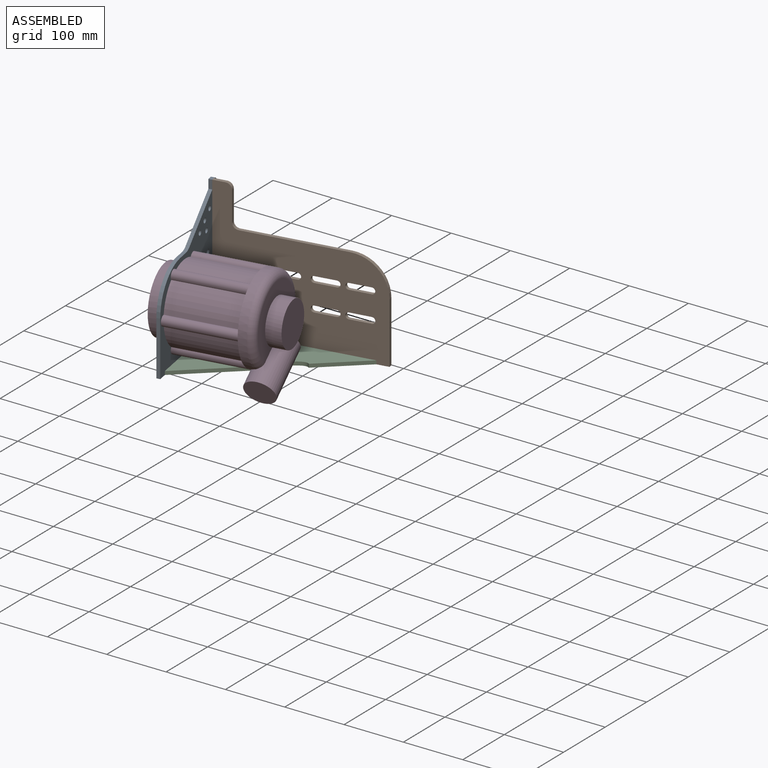
[diagram: assembled view]
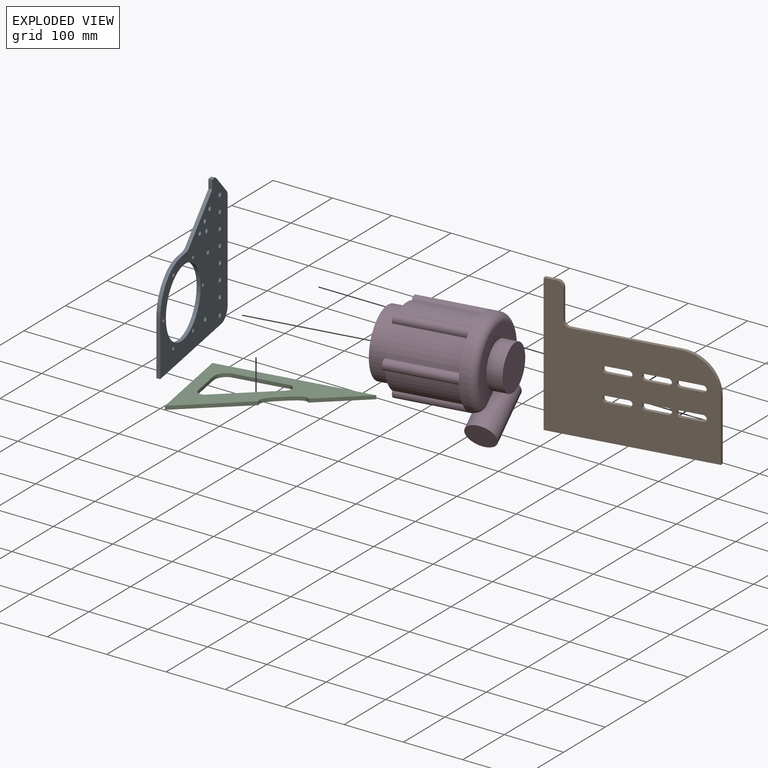
[diagram: exploded view]
GUIDED TOUR — MATED ASSEMBLY (Onshape document b6dd15bceb732d4331d81764, AutoMate assembly b6dd15bceb732d4331d81764_ab1a98565d9f3b49eaa1578f_37b8a9156326d89f8cf06a58_default)

This assembly has 4 components, labeled P0..P3 below (a component is one placed occurrence of a part; the same part can appear more than once), held together by 3 mates. A mate is a constraint between two components; its type names the relative motion it leaves free:
  FASTENED — locks the two components together rigidly (no relative motion).
Axis/direction vectors are unit vectors and 'through' points are millimeter coordinates, both in the assembly's world frame.

MATES
  1. FASTENED "Fastened 3": P3 <-> P0, direction (-0.985, -0.174, 0.000) through (-94.54, 47.59, 72.27) mm
  2. FASTENED "Fastened 1": P1 <-> P0, direction (-0.985, -0.174, 0.000) through (-111.03, 141.15, 219.27) mm
  3. FASTENED "Fastened 2": P2 <-> P1, direction (-0.174, 0.985, 0.000) through (-111.03, 141.15, -12.73) mm

ASSEMBLY ORDER
  1. P0 — the base component [order heuristic]
  2. P3 — core [order heuristic]
  3. P1 [order verified]
  4. P2 [order verified]
Order-tag legend:
  [order verified] — this step's position reverses a verified removal order: the component was checked to insert without passing through the ones already placed.
  [order heuristic] — the first 2 components form the assembly's core: parts whose collision-free extraction could not be verified, listed in mate-graph order.

Of the 4 components, 3 carry the full construction recipe — the FeatureScript program that regenerates the part's solid from scratch; the rest are supplied as boundary geometry only.
Each toured component is shown spotlighted twice — in the assembled view, then in the exploded view, where a leader line traces a displaced component back to its assembled socket (saturated green if recipe-attached, orange if geometry-only; every other component desaturated gray) — followed by its recipe or geometry summary and the mates that hold it.
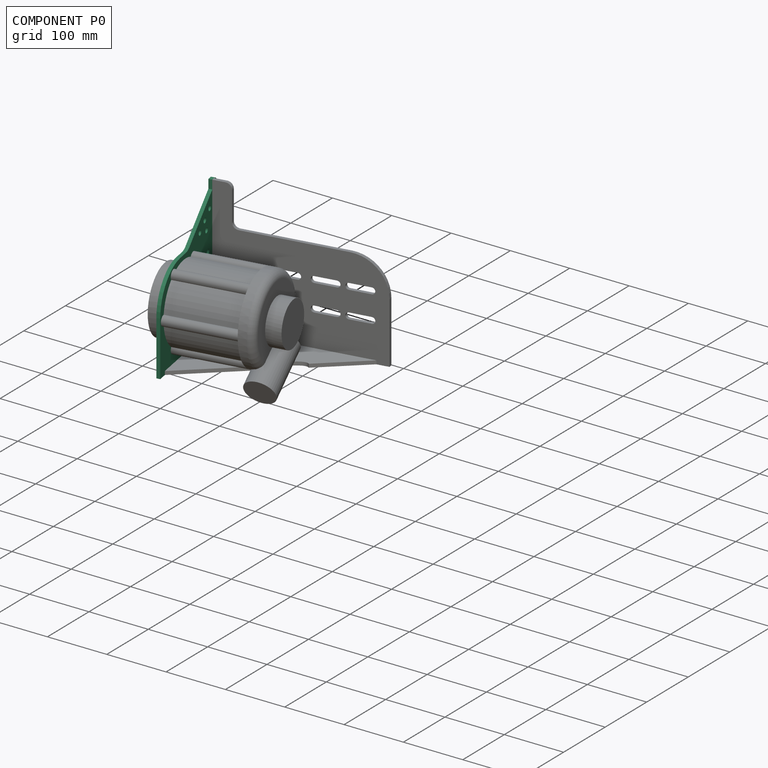
[diagram: component P0 — assembled]
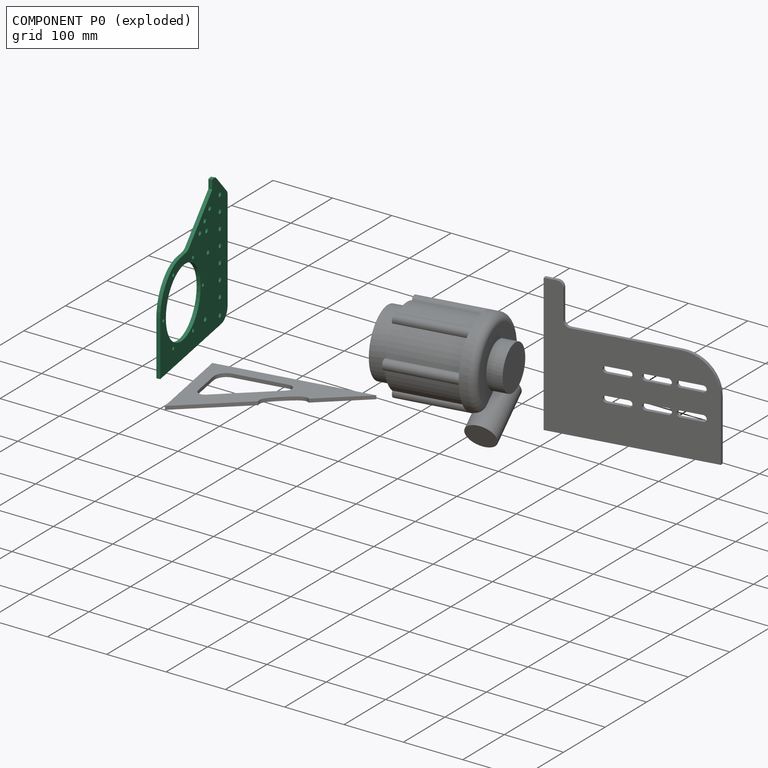
[diagram: component P0 — exploded]
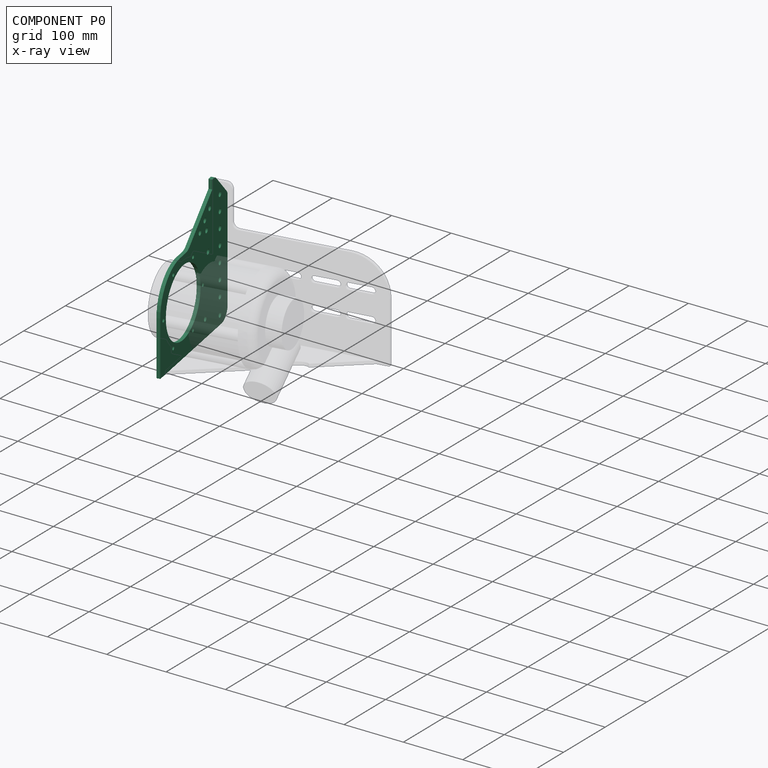
[diagram: component P0 — x-ray view]
COMPONENT P0 — recipe-attached (CADFS 00251067, mesh-verified: the recipe's output STEP matches this component's geometry to below the mesh-comparison resolution (tessellation chordal tolerance ~0.48 mm)).
Held by: FASTENED mate "Fastened 3" to P3; FASTENED mate "Fastened 1" to P1.
Construction recipe (FeatureScript — the CAD program that rebuilds this solid; sketch coordinates are in the units given by the * unit suffixes, e.g. mm):

FeatureScript 1511;
import(path : "onshape/std/geometry.fs", version : "1511.0");
import(path : "onshape/std/common.fs", version : "1511.0");
const mm = millimeter;
const VERTEX = EntityType.VERTEX;
const EDGE = EntityType.EDGE;
const FACE = EntityType.FACE;
const BODY = EntityType.BODY;
function v(x, y){return vector(x, y);}
function OD(order){return orderDisambiguation(order);}
function OSD(set){return originalSetDisambiguation(set);}
function TD(topology){return topologyDisambiguation(topology);}
function TDD(query){return trueDependencyDisambiguation(query);}
function sQuery(a, b, c) {return sketchEntityQuery(a, b, c);}

annotation { "Feature Type Name" : "Feature", "Feature Type Description" : "" }
export const myFeature = defineFeature(function(context is Context, id is Id, definition is map)
    precondition{}
    {
        {
            var Q0;
            Q0=qCreatedBy(makeId("Right.planeOp"),FACE);
            var sketch = newSketch(context, id + "F0", { "sketchPlane" : qUnion([Q0])});
            skLineSegment(sketch, "E0.bottom", {"start": v(-20, 0) * mm, "end": v(-220, 0) * mm});
            skLineSegment(sketch, "E0.left", {"start": v(0, 20) * mm, "end": v(0, 187.86) * mm});
            skLineSegment(sketch, "E0.right", {"start": v(-220, 0) * mm, "end": v(-220, 92) * mm});
            skCircle(sketch, "E1", {"center": v(-145, 85) * mm, "radius": 56.75 * mm});
            skCircle(sketch, "E2", {"center": v(-145, 85) * mm, "radius": 64.5 * mm, "construction": true});
            skCircle(sketch, "E3", {"center": v(-80.5, 85) * mm, "radius": 3.1 * mm});
            skLineSegment(sketch, "E4", {"start": v(25.99, 85) * mm, "end": v(-259.94, 85) * mm, "construction": true});
            skCircle(sketch, "E5.1.0", {"center": v(-112.75, 140.86) * mm, "radius": 3.1 * mm});
            skCircle(sketch, "E5.2.0", {"center": v(-177.25, 140.86) * mm, "radius": 3.1 * mm});
            skCircle(sketch, "E5.3.0", {"center": v(-209.5, 85) * mm, "radius": 3.1 * mm});
            skCircle(sketch, "E5.4.0", {"center": v(-177.25, 29.14) * mm, "radius": 3.1 * mm});
            skCircle(sketch, "E5.5.0", {"center": v(-112.75, 29.14) * mm, "radius": 3.1 * mm});
            skCircle(sketch, "E6", {"center": v(-145, 85) * mm, "radius": 55 * mm, "construction": true});
            skCircle(sketch, "E7", {"center": v(-145, 85) * mm, "radius": 42.5 * mm, "construction": true});
            skLineSegment(sketch, "E8", {"start": v(-25, -2.5) * mm, "end": v(-25, 245.05) * mm, "construction": true});
            skLineSegment(sketch, "E9.top", {"start": v(-44.14, 232) * mm, "end": v(-50, 232) * mm});
            skLineSegment(sketch, "E9.right", {"start": v(-50, 157) * mm, "end": v(-50, 232) * mm});
            skCircle(sketch, "E10", {"center": v(-25, 199.42) * mm, "radius": 26 * mm, "construction": true});
            skCircle(sketch, "E11", {"center": v(-25, 199.42) * mm, "radius": 4.1 * mm});
            skLineSegment(sketch, "E12", {"start": v(-136.67, 157) * mm, "end": v(-155, 157) * mm});
            skLineSegment(sketch, "E13.bottom", {"start": v(-50, 232) * mm, "end": v(-44, 232) * mm, "construction": true});
            skLineSegment(sketch, "E13.top", {"start": v(-50, 0) * mm, "end": v(-44, 0) * mm, "construction": true});
            skLineSegment(sketch, "E13.left", {"start": v(-50, 232) * mm, "end": v(-50, 0) * mm, "construction": true});
            skLineSegment(sketch, "E13.right", {"start": v(-44, 232) * mm, "end": v(-44, 0) * mm, "construction": true});
            skCircle(sketch, "E14.0.1.0", {"center": v(-25, 173.42) * mm, "radius": 4.1 * mm});
            skCircle(sketch, "E14.0.2.0", {"center": v(-25, 147.42) * mm, "radius": 4.1 * mm});
            skCircle(sketch, "E14.0.3.0", {"center": v(-25, 121.42) * mm, "radius": 4.1 * mm});
            skCircle(sketch, "E14.0.4.0", {"center": v(-25, 95.42) * mm, "radius": 4.1 * mm});
            skCircle(sketch, "E14.0.5.0", {"center": v(-25, 69.42) * mm, "radius": 4.1 * mm});
            skCircle(sketch, "E14.0.6.0", {"center": v(-25, 43.42) * mm, "radius": 4.1 * mm});
            skCircle(sketch, "E14.0.7.0", {"center": v(-25, 15.48) * mm, "radius": 4.1 * mm});
            skLineSegment(sketch, "E14.direction2", {"start": v(-25, 199.42) * mm, "end": v(-25, 173.42) * mm, "construction": true});
            skPoint(sketch, "E15.visualSharp", {"position": v(0, 232) * mm});
            skPoint(sketch, "E16.visualSharp", {"position": v(0, 0) * mm});
            skArc(sketch, "E16.filletArc", {"start": v(-20, 0) * mm, "mid": v(-5.86, 5.86) * mm, "end": v(0, 20) * mm});
            skPoint(sketch, "E17.visualSharp", {"position": v(-220, 157) * mm});
            skArc(sketch, "E17.filletArc", {"start": v(-155, 157) * mm, "mid": v(-200.96, 137.96) * mm, "end": v(-220, 92) * mm});
            skPoint(sketch, "E18.visualSharp", {"position": v(-220, 0) * mm});
            skCircle(sketch, "E19", {"center": v(-72.99, 29.66) * mm, "radius": 4.1 * mm});
            skCircle(sketch, "E20", {"center": v(-63.87, 127.94) * mm, "radius": 4.1 * mm});
            skCircle(sketch, "E21", {"center": v(-63.87, 127.94) * mm, "radius": 20 * mm, "construction": true});
            skCircle(sketch, "E22", {"center": v(-72.99, 29.66) * mm, "radius": 26 * mm, "construction": true});
            skCircle(sketch, "E23", {"center": v(-25, 121.42) * mm, "radius": 26 * mm, "construction": true});
            skCircle(sketch, "E24", {"center": v(-25, 43.42) * mm, "radius": 26 * mm, "construction": true});
            skLineSegment(sketch, "E25", {"start": v(-2.93, 194.93) * mm, "end": v(-37.07, 229.07) * mm});
            skPoint(sketch, "E26.visualSharp", {"position": v(0, 192) * mm});
            skArc(sketch, "E26.filletArc", {"start": v(0, 187.86) * mm, "mid": v(-0.76, 191.68) * mm, "end": v(-2.93, 194.93) * mm});
            skPoint(sketch, "E27.visualSharp", {"position": v(-40, 232) * mm});
            skArc(sketch, "E27.filletArc", {"start": v(-37.07, 229.07) * mm, "mid": v(-40.32, 231.24) * mm, "end": v(-44.14, 232) * mm});
            skLineSegment(sketch, "E28", {"start": v(-50, 217) * mm, "end": v(-124.67, 161) * mm});
            skCircle(sketch, "E29", {"center": v(-58.3, 192.02) * mm, "radius": 26 * mm, "construction": true});
            skCircle(sketch, "E30", {"center": v(-58.3, 192.02) * mm, "radius": 4.1 * mm});
            skCircle(sketch, "E31", {"center": v(-74.3, 180.02) * mm, "radius": 4.1 * mm});
            skCircle(sketch, "E32", {"center": v(-90.3, 168.02) * mm, "radius": 4.1 * mm});
            skLineSegment(sketch, "E33", {"start": v(-107.79, 154.9) * mm, "end": v(-46.32, 201.01) * mm, "construction": true});
            skPoint(sketch, "E34.visualSharp", {"position": v(-130, 157) * mm});
            skArc(sketch, "E34.filletArc", {"start": v(-136.67, 157) * mm, "mid": v(-130.34, 158.03) * mm, "end": v(-124.67, 161) * mm});
            skCircle(sketch, "E35", {"center": v(-68.75, 162.53) * mm, "radius": 4.1 * mm});
            skSolve(sketch);
        }
        {
            var Q0;
            Q0 = qSketchRegion(id + "F0", true);
            extrude(context, id + "F1", {"entities" : qUnion([Q0]), "depth" : 6 * mm});
        }
    });
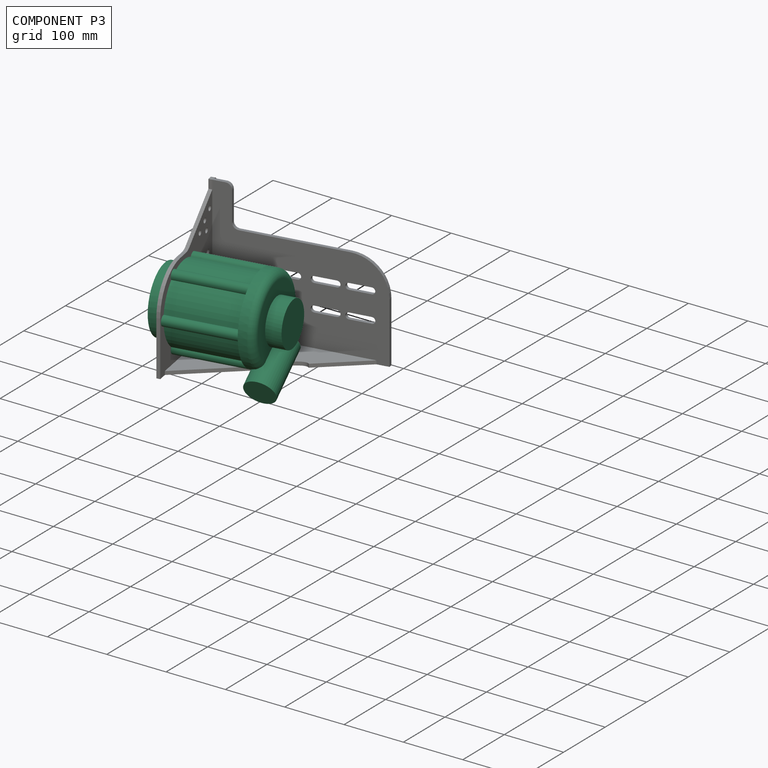
[diagram: component P3 — assembled]
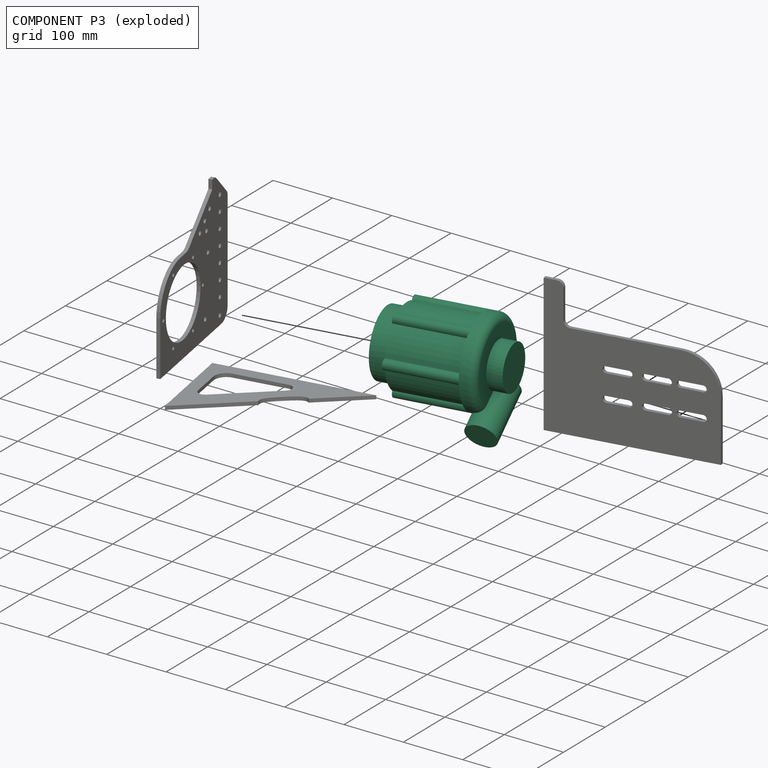
[diagram: component P3 — exploded]
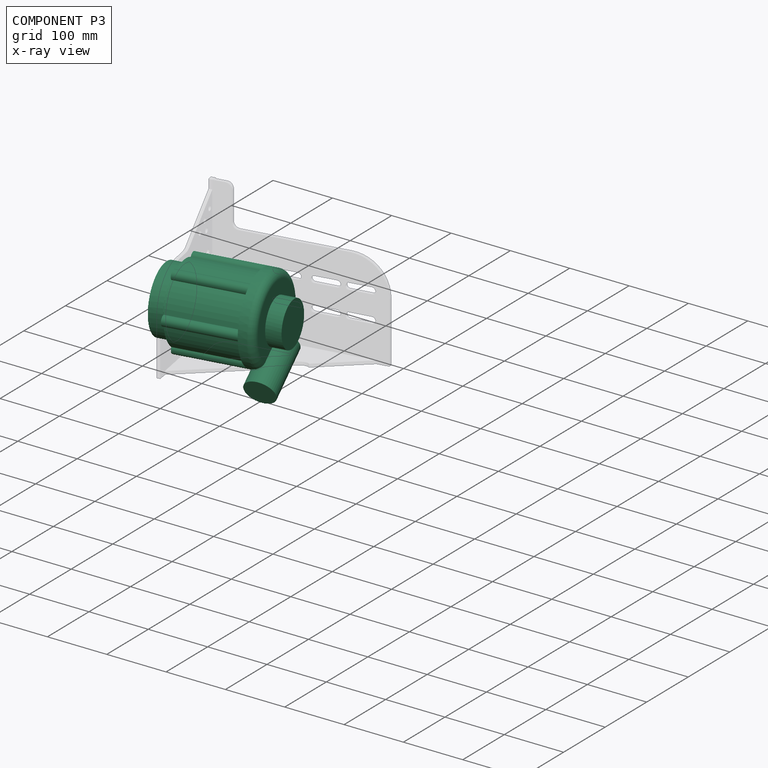
[diagram: component P3 — x-ray view]
COMPONENT P3 — recipe-attached (CADFS 00251066, mesh-verified: the recipe's output STEP matches this component's geometry to below the mesh-comparison resolution (tessellation chordal tolerance ~0.456 mm)).
Held by: FASTENED mate "Fastened 3" to P0.
Construction recipe (FeatureScript — the CAD program that rebuilds this solid; sketch coordinates are in the units given by the * unit suffixes, e.g. mm):

FeatureScript 1511;
import(path : "onshape/std/geometry.fs", version : "1511.0");
import(path : "onshape/std/common.fs", version : "1511.0");
const mm = millimeter;
const VERTEX = EntityType.VERTEX;
const EDGE = EntityType.EDGE;
const FACE = EntityType.FACE;
const BODY = EntityType.BODY;
function v(x, y){return vector(x, y);}
function OD(order){return orderDisambiguation(order);}
function OSD(set){return originalSetDisambiguation(set);}
function TD(topology){return topologyDisambiguation(topology);}
function TDD(query){return trueDependencyDisambiguation(query);}
function sQuery(a, b, c) {return sketchEntityQuery(a, b, c);}

annotation { "Feature Type Name" : "Feature", "Feature Type Description" : "" }
export const myFeature = defineFeature(function(context is Context, id is Id, definition is map)
    precondition{}
    {
        {
            var Q0;
            Q0=qCreatedBy(makeId("Right.planeOp"),FACE);
            var sketch = newSketch(context, id + "F0", { "sketchPlane" : qUnion([Q0])});
            skCircle(sketch, "E0", {"center": v(0, 0) * mm, "radius": 56.5 * mm});
            skSolve(sketch);
        }
        {
            var Q0;
            Q0 = qSketchRegion(id + "F0", true);
            extrude(context, id + "F1", {"entities" : qUnion([Q0]), "oppositeDirection" : true, "depth" : 5 * mm});
        }
        {
            var Q0;
            Q0=makeQuery(id+"F1.opExtrude","CAP_FACE",FACE,{"disambiguationData":[OSD([sQuery(id+"F0.wireOp",EDGE,"E0")])],"isStart":true});
            var sketch = newSketch(context, id + "F2", { "sketchPlane" : qUnion([Q0])});
            skCircle(sketch, "E1", {"center": v(0, 0) * mm, "radius": 55 * mm});
            skSolve(sketch);
        }
        {
            var Q0;
            Q0 = qSketchRegion(id + "F2", true);
            extrude(context, id + "F3", {"entities" : qUnion([Q0]), "operationType" : NewBodyOperationType.ADD, "oppositeDirection" : true, "depth" : 28.5 * mm});
        }
        {
            var Q0;
            Q0=qCreatedBy(makeId("Right.planeOp"),FACE);
            var sketch = newSketch(context, id + "F4", { "sketchPlane" : qUnion([Q0])});
            skArc(sketch, "E2", {"start": v(24.62, 59.61) * mm, "mid": v(0, 64.5) * mm, "end": v(-24.62, 59.61) * mm});
            skArc(sketch, "E3", {"start": v(-63.94, 8.48) * mm, "mid": v(-73, 0) * mm, "end": v(-63.94, -8.48) * mm});
            skArc(sketch, "E4.1.1", {"start": v(-39.32, -51.13) * mm, "mid": v(-36.5, -63.22) * mm, "end": v(-24.62, -59.61) * mm});
            skArc(sketch, "E4.2.1", {"start": v(24.62, -59.61) * mm, "mid": v(36.5, -63.22) * mm, "end": v(39.32, -51.13) * mm});
            skArc(sketch, "E4.3.1", {"start": v(63.94, -8.48) * mm, "mid": v(73, 0) * mm, "end": v(63.94, 8.48) * mm});
            skArc(sketch, "E4.4.1", {"start": v(39.32, 51.13) * mm, "mid": v(36.5, 63.22) * mm, "end": v(24.62, 59.61) * mm});
            skArc(sketch, "E4.5.1", {"start": v(-24.62, 59.61) * mm, "mid": v(-36.5, 63.22) * mm, "end": v(-39.32, 51.13) * mm});
            skArc(sketch, "E5.trimOffspring", {"start": v(-39.32, 51.13) * mm, "mid": v(-55.86, 32.25) * mm, "end": v(-63.94, 8.48) * mm});
            skArc(sketch, "E6.trimOffspring", {"start": v(-63.94, -8.48) * mm, "mid": v(-55.86, -32.25) * mm, "end": v(-39.32, -51.13) * mm});
            skArc(sketch, "E7.trimOffspring", {"start": v(-24.62, -59.61) * mm, "mid": v(0, -64.5) * mm, "end": v(24.62, -59.61) * mm});
            skArc(sketch, "E8.trimOffspring", {"start": v(39.32, -51.13) * mm, "mid": v(55.86, -32.25) * mm, "end": v(63.94, -8.48) * mm});
            skArc(sketch, "E9.trimOffspring", {"start": v(63.94, 8.48) * mm, "mid": v(55.86, 32.25) * mm, "end": v(39.32, 51.13) * mm});
            skSolve(sketch);
        }
        {
            var Q0;
            Q0 = qSketchRegion(id + "F4", true);
            extrude(context, id + "F5", {"entities" : qUnion([Q0]), "operationType" : NewBodyOperationType.ADD, "depth" : 117 * mm});
        }
        {
            var Q0;
            Q0=qCreatedBy(makeId("Front.planeOp"),FACE);
            var sketch = newSketch(context, id + "F6", { "sketchPlane" : qUnion([Q0])});
            skArc(sketch, "E10", {"start": v(142, 60.5) * mm, "mid": v(138.34, 69.34) * mm, "end": v(129.5, 73) * mm});
            skLineSegment(sketch, "E11", {"start": v(-35.74, 0) * mm, "end": v(197.64, 0) * mm, "construction": true});
            skLineSegment(sketch, "E12", {"start": v(129.5, 73) * mm, "end": v(117, 73) * mm});
            skLineSegment(sketch, "E13", {"start": v(117, 73) * mm, "end": v(117, 0) * mm});
            skLineSegment(sketch, "E14", {"start": v(117, 0) * mm, "end": v(167, 0) * mm});
            skLineSegment(sketch, "E15", {"start": v(167, 0) * mm, "end": v(167, 37) * mm});
            skLineSegment(sketch, "E16", {"start": v(142, 60.5) * mm, "end": v(142, 37) * mm});
            skLineSegment(sketch, "E17", {"start": v(142, 37) * mm, "end": v(167, 37) * mm});
            skPoint(sketch, "E17.endSnap0", {"position": v(167, 18.5) * mm});
            skSolve(sketch);
        }
        {
            var Q0;
            Q0 = qSketchRegion(id + "F6", true);
            var Q1;
            Q1=sQuery(id+"F6.wireOp",EDGE,"E11");
            revolve(context, id + "F7", {"operationType" : NewBodyOperationType.ADD, "entities" : qUnion([Q0]), "axis" : qUnion([Q1]), "revolveType" : RevolveType.FULL});
        }
        {
            var Q0;
            Q0=sQuery(id+"F6.wireOp",EDGE,"E14");
            var Q1;
            Q1=qCreatedBy(makeId("Front.planeOp"),FACE);
            cPlane(context, id + "F8", {"entities" : qUnion([Q0, Q1]), "cplaneType" : CPlaneType.LINE_ANGLE, "offset" : 25 * mm, "angle" : 30 * degree, "width" : 150 * mm, "height" : 150 * mm});
        }
        {
            var Q0;
            Q0=qCreatedBy(id+"F8.planeOp",FACE);
            var sketch = newSketch(context, id + "F9", { "sketchPlane" : qUnion([Q0])});
            skCircle(sketch, "E18", {"center": v(-142, -48) * mm, "radius": 25 * mm});
            skLineSegment(sketch, "E19", {"start": v(-189.52, -73) * mm, "end": v(-73.54, -73) * mm, "construction": true});
            skSolve(sketch);
        }
        {
            var Q0;
            Q0 = qSketchRegion(id + "F9", true);
            extrude(context, id + "F10", {"entities" : qUnion([Q0]), "operationType" : NewBodyOperationType.ADD, "oppositeDirection" : true, "depth" : 90 * mm});
        }
    });
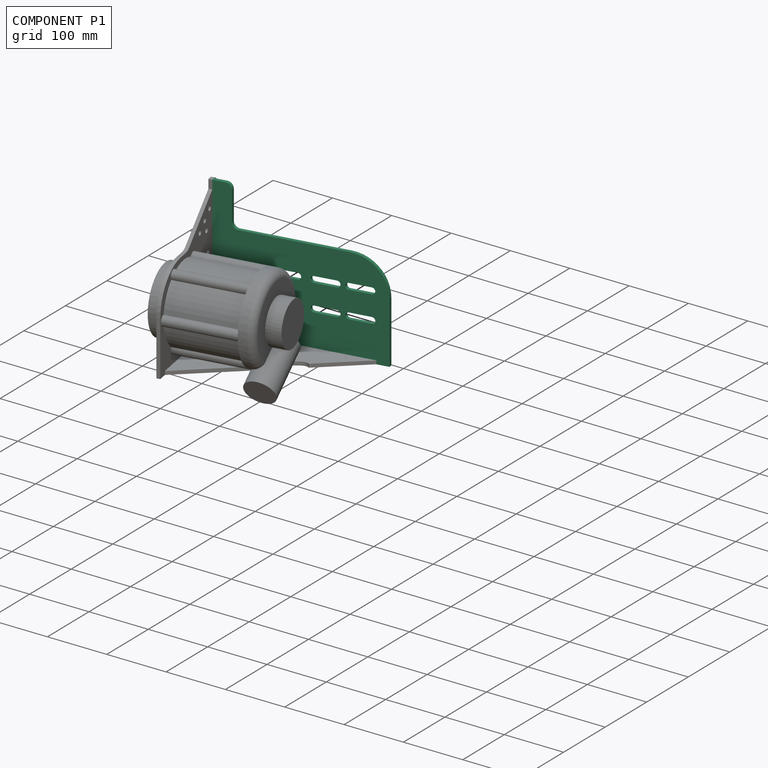
[diagram: component P1 — assembled]
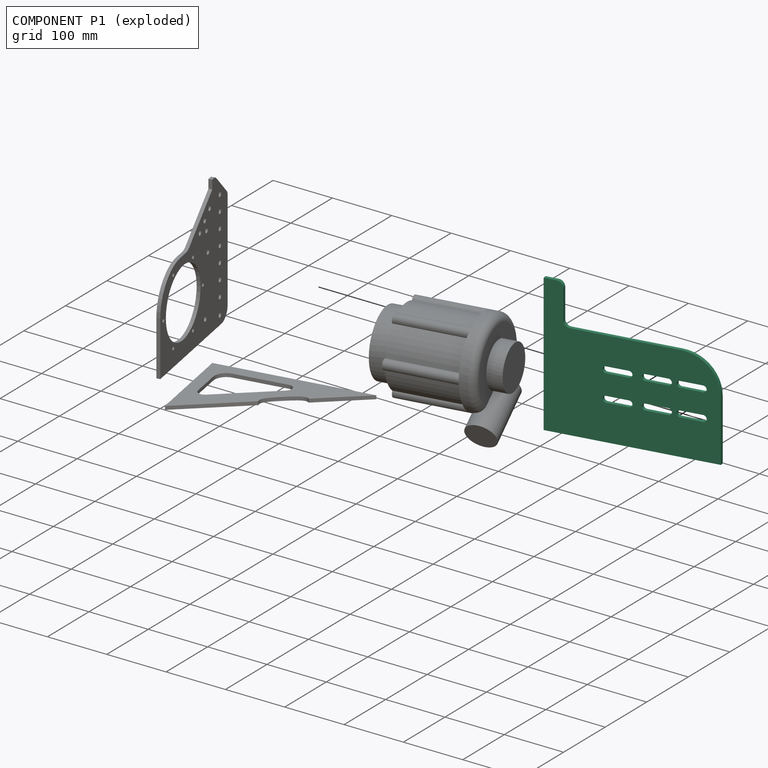
[diagram: component P1 — exploded]
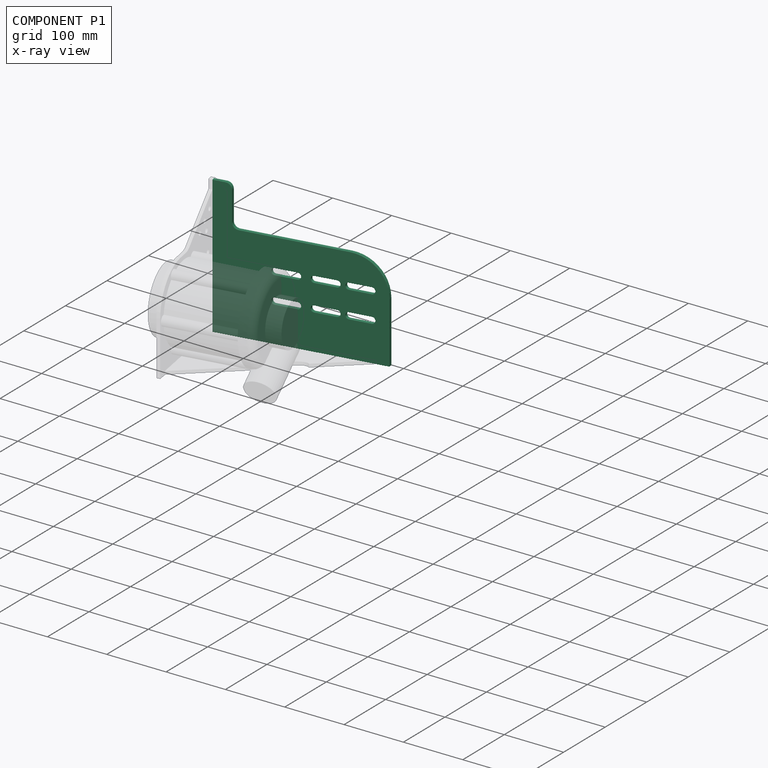
[diagram: component P1 — x-ray view]
COMPONENT P1 — recipe-attached (CADFS 00251064, mesh-verified: the recipe's output STEP matches this component's geometry to below the mesh-comparison resolution (tessellation chordal tolerance ~0.534 mm)).
Held by: FASTENED mate "Fastened 1" to P0; FASTENED mate "Fastened 2" to P2.
Construction recipe (FeatureScript — the CAD program that rebuilds this solid; sketch coordinates are in the units given by the * unit suffixes, e.g. mm):

FeatureScript 1511;
import(path : "onshape/std/geometry.fs", version : "1511.0");
import(path : "onshape/std/common.fs", version : "1511.0");
const mm = millimeter;
const VERTEX = EntityType.VERTEX;
const EDGE = EntityType.EDGE;
const FACE = EntityType.FACE;
const BODY = EntityType.BODY;
function v(x, y){return vector(x, y);}
function OD(order){return orderDisambiguation(order);}
function OSD(set){return originalSetDisambiguation(set);}
function TD(topology){return topologyDisambiguation(topology);}
function TDD(query){return trueDependencyDisambiguation(query);}
function sQuery(a, b, c) {return sketchEntityQuery(a, b, c);}

annotation { "Feature Type Name" : "Feature", "Feature Type Description" : "" }
export const myFeature = defineFeature(function(context is Context, id is Id, definition is map)
    precondition{}
    {
        {
            var Q0;
            Q0=qCreatedBy(makeId("Front.planeOp"),FACE);
            var sketch = newSketch(context, id + "F0", { "sketchPlane" : qUnion([Q0])});
            skLineSegment(sketch, "E0.bottom", {"start": v(0, 0) * mm, "end": v(270, 0) * mm});
            skLineSegment(sketch, "E0.top", {"start": v(40, 163) * mm, "end": v(210, 163) * mm});
            skLineSegment(sketch, "E0.left", {"start": v(0, 0) * mm, "end": v(0, 163) * mm});
            skLineSegment(sketch, "E0.right", {"start": v(270, 0) * mm, "end": v(270, 103) * mm});
            skLineSegment(sketch, "E1.bottom", {"start": v(95, 115.75) * mm, "end": v(130, 115.75) * mm});
            skLineSegment(sketch, "E1.top", {"start": v(95, 105.25) * mm, "end": v(130, 105.25) * mm});
            skArc(sketch, "E2", {"start": v(95, 115.75) * mm, "mid": v(89.75, 110.5) * mm, "end": v(95, 105.25) * mm});
            skArc(sketch, "E3", {"start": v(130, 105.25) * mm, "mid": v(135.25, 110.5) * mm, "end": v(130, 115.75) * mm});
            skPoint(sketch, "E4.startSnap0", {"position": v(89.75, 110.5) * mm});
            skPoint(sketch, "E4.endSnap0", {"position": v(89.75, 110.5) * mm});
            skLineSegment(sketch, "E5", {"start": v(301.19, 88) * mm, "end": v(-50.1, 88) * mm, "construction": true});
            skLineSegment(sketch, "E6", {"start": v(71.88, 110.5) * mm, "end": v(250.88, 110.5) * mm, "construction": true});
            skLineSegment(sketch, "E7.1.0.0", {"start": v(155, 115.75) * mm, "end": v(190, 115.75) * mm});
            skLineSegment(sketch, "E7.1.0.1", {"start": v(155, 105.25) * mm, "end": v(190, 105.25) * mm});
            skArc(sketch, "E7.1.0.2", {"start": v(190, 105.25) * mm, "mid": v(195.25, 110.5) * mm, "end": v(190, 115.75) * mm});
            skArc(sketch, "E7.1.0.3", {"start": v(155, 115.75) * mm, "mid": v(149.75, 110.5) * mm, "end": v(155, 105.25) * mm});
            skPoint(sketch, "E7.1.0.4", {"position": v(149.75, 110.5) * mm});
            skPoint(sketch, "E7.1.0.5", {"position": v(149.75, 110.5) * mm});
            skLineSegment(sketch, "E7.direction1", {"start": v(95, 105.25) * mm, "end": v(155, 105.25) * mm, "construction": true});
            skArc(sketch, "E8.1.0.0", {"start": v(243, 105.25) * mm, "mid": v(248.25, 110.5) * mm, "end": v(243, 115.75) * mm});
            skPoint(sketch, "E8.1.0.1", {"position": v(202.75, 110.5) * mm});
            skArc(sketch, "E8.1.0.2", {"start": v(208, 115.75) * mm, "mid": v(202.75, 110.5) * mm, "end": v(208, 105.25) * mm});
            skLineSegment(sketch, "E8.1.0.3", {"start": v(208, 105.25) * mm, "end": v(243, 105.25) * mm});
            skLineSegment(sketch, "E8.1.0.4", {"start": v(208, 115.75) * mm, "end": v(243, 115.75) * mm});
            skPoint(sketch, "E8.1.0.5", {"position": v(202.75, 110.5) * mm});
            skLineSegment(sketch, "E8.direction1", {"start": v(155, 105.25) * mm, "end": v(208, 105.25) * mm, "construction": true});
            skPoint(sketch, "E9.MirrorP", {"position": v(202.75, 65.5) * mm});
            skLineSegment(sketch, "E10.MirrorCS", {"start": v(155, 70.75) * mm, "end": v(190, 70.75) * mm});
            skPoint(sketch, "E11.MirrorP", {"position": v(89.75, 65.5) * mm});
            skArc(sketch, "E12.MirrorCS", {"start": v(208, 60.25) * mm, "mid": v(202.75, 65.5) * mm, "end": v(208, 70.75) * mm});
            skLineSegment(sketch, "E13.MirrorCS", {"start": v(95, 70.75) * mm, "end": v(130, 70.75) * mm});
            skPoint(sketch, "E14.MirrorP", {"position": v(149.75, 65.5) * mm});
            skArc(sketch, "E15.MirrorCS", {"start": v(190, 70.75) * mm, "mid": v(195.25, 65.5) * mm, "end": v(190, 60.25) * mm});
            skLineSegment(sketch, "E16.MirrorCS", {"start": v(155, 70.75) * mm, "end": v(208, 70.75) * mm, "construction": true});
            skArc(sketch, "E17.MirrorCS", {"start": v(95, 60.25) * mm, "mid": v(89.75, 65.5) * mm, "end": v(95, 70.75) * mm});
            skArc(sketch, "E18.MirrorCS", {"start": v(243, 70.75) * mm, "mid": v(248.25, 65.5) * mm, "end": v(243, 60.25) * mm});
            skLineSegment(sketch, "E19.MirrorCS", {"start": v(71.88, 65.5) * mm, "end": v(250.88, 65.5) * mm, "construction": true});
            skLineSegment(sketch, "E20.MirrorCS", {"start": v(95, 70.75) * mm, "end": v(155, 70.75) * mm, "construction": true});
            skLineSegment(sketch, "E21.MirrorCS", {"start": v(208, 60.25) * mm, "end": v(243, 60.25) * mm});
            skLineSegment(sketch, "E22.MirrorCS", {"start": v(95, 60.25) * mm, "end": v(130, 60.25) * mm});
            skArc(sketch, "E23.MirrorCS", {"start": v(155, 60.25) * mm, "mid": v(149.75, 65.5) * mm, "end": v(155, 70.75) * mm});
            skLineSegment(sketch, "E24.MirrorCS", {"start": v(208, 70.75) * mm, "end": v(243, 70.75) * mm});
            skArc(sketch, "E25.MirrorCS", {"start": v(130, 70.75) * mm, "mid": v(135.25, 65.5) * mm, "end": v(130, 60.25) * mm});
            skLineSegment(sketch, "E26.MirrorCS", {"start": v(155, 60.25) * mm, "end": v(190, 60.25) * mm});
            skArc(sketch, "E27.filletArc", {"start": v(270, 103) * mm, "mid": v(252.43, 145.43) * mm, "end": v(210, 163) * mm});
            skLineSegment(sketch, "E28.top", {"start": v(20, 232) * mm, "end": v(0, 232) * mm});
            skLineSegment(sketch, "E29", {"start": v(30, 173) * mm, "end": v(30, 222) * mm});
            skLineSegment(sketch, "E30", {"start": v(0, 232) * mm, "end": v(0, 163) * mm});
            skArc(sketch, "E31.filletArc", {"start": v(30, 222) * mm, "mid": v(27.07, 229.07) * mm, "end": v(20, 232) * mm});
            skPoint(sketch, "E32.visualSharp", {"position": v(30, 163) * mm});
            skArc(sketch, "E32.filletArc", {"start": v(30, 173) * mm, "mid": v(32.93, 165.93) * mm, "end": v(40, 163) * mm});
            skSolve(sketch);
        }
        {
            var Q0;
            Q0=makeQuery(id+"F0.imprint","IMPRINT",FACE,{"disambiguationData":[TD([[makeQuery(id+"F0.imprint","IMPRINT",EDGE,{"derivedFrom":sQuery(id+"F0.wireOp",EDGE,"E0.bottom")}),1.0]])]});
            extrude(context, id + "F1", {"entities" : qUnion([Q0]), "depth" : 6 * mm});
        }
    });
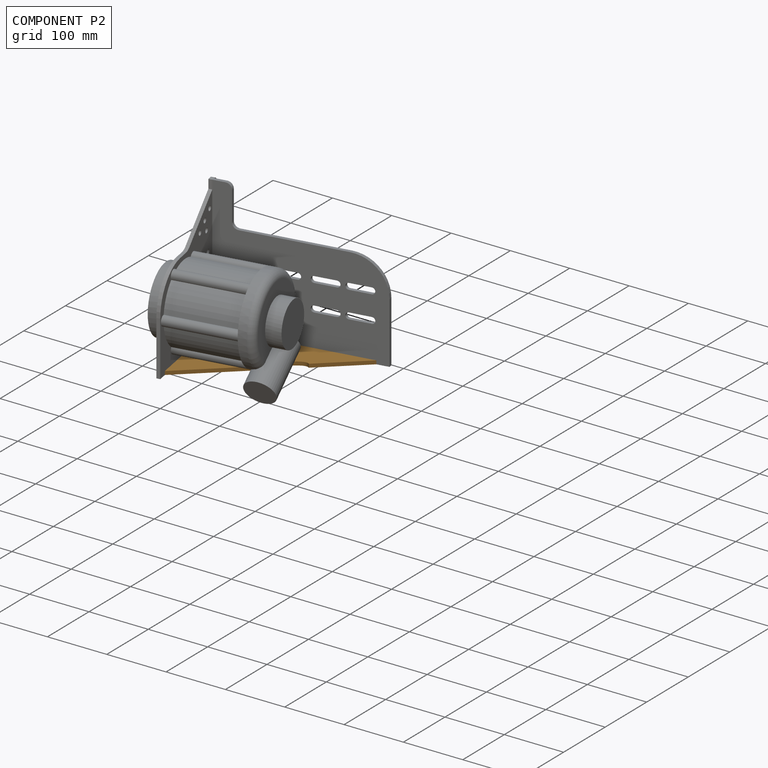
[diagram: component P2 — assembled]
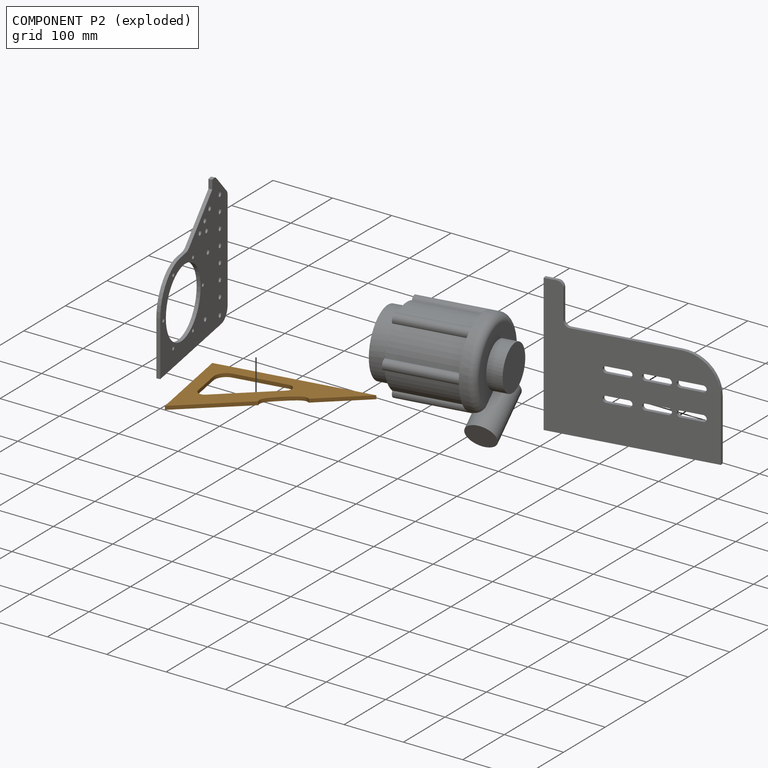
[diagram: component P2 — exploded]
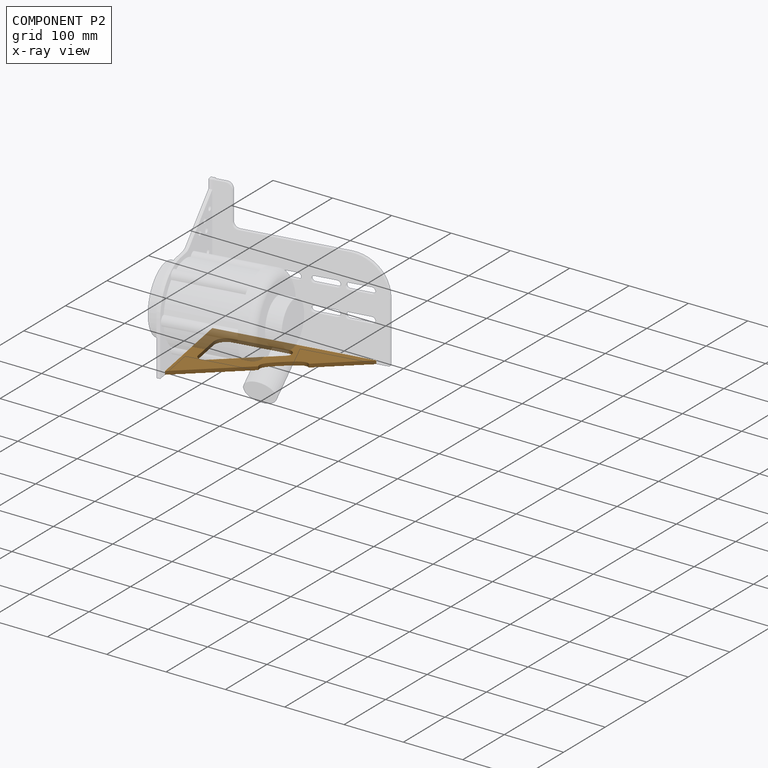
[diagram: component P2 — x-ray view]
COMPONENT P2 — geometry summary (no construction recipe available for this part):
  bounding box: 250.0 x 155.0 x 6.0 mm
  B-rep topology: 1 solid, 13 faces, 66 edges
  volume: 78064 mm^3 (34% of its bounding box)
  symmetry: mirror-symmetric across its z mid-plane
Held by: FASTENED mate "Fastened 2" to P1.
PROVENANCE & LICENSES
Assembly (occurrences, transforms, mates, per-part STEP geometry): AutoMate dataset, Zenodo record 7776208, CC0.
Construction recipes: CADFS (HuggingFace VladPyatov/CADFS, CC-BY-4.0, layered over the ABC dataset), FeatureScript reconstruction programs keyed by ABC model id.
Join: ABC meta listings map ABC model id -> Onshape documentId; within a shared document, parts are matched by geometric signature (bounding-box dims + volume at 0.1% relative tolerance, exact B-rep face/solid counts).
Verification: 3 of this assembly's 4 components carry a recipe attachment, and every attachment is mesh-verified: the CADFS STEP and the AutoMate member STEP were compared as meshes in their shared local frame (symmetric sampled-point-to-mesh distance); worst across the 3 attachments: below the mesh-comparison resolution (tessellation chordal tolerance ~0.534 mm) on a 356 mm part.
Renders: orthographic iso camera (az 35 / el 25); the floor grid conveys scale (grid pitch printed in each image; no ruler). In the exploded view each component is displaced by its stored offset vector: the offsets alone carry the explosion direction (mate normal/axis signs are not orientation cues and do not encode it), and separation distances are assigned per mate-chain, not proportionally to assembly-order depth.
